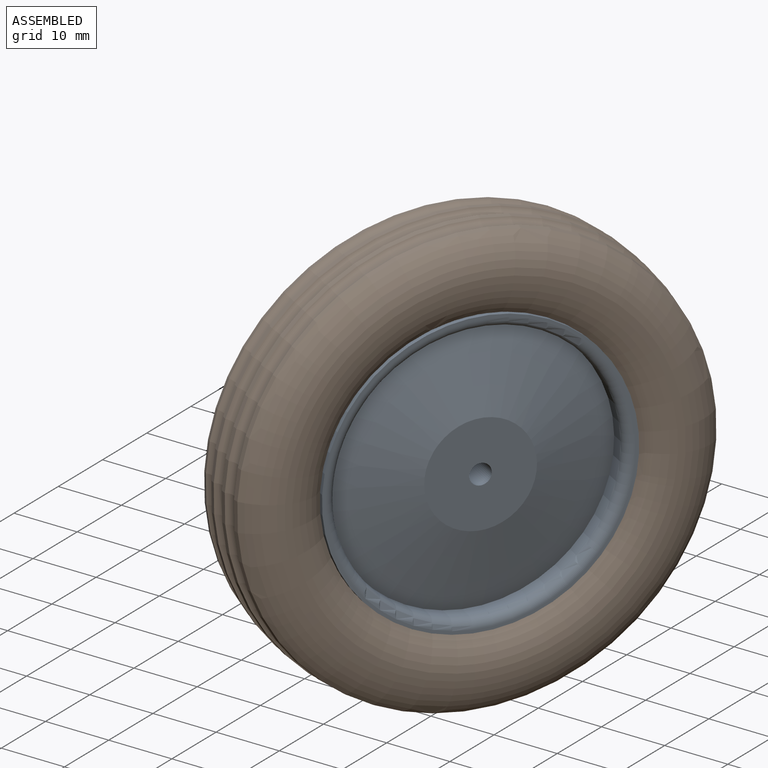
[diagram: assembled view]
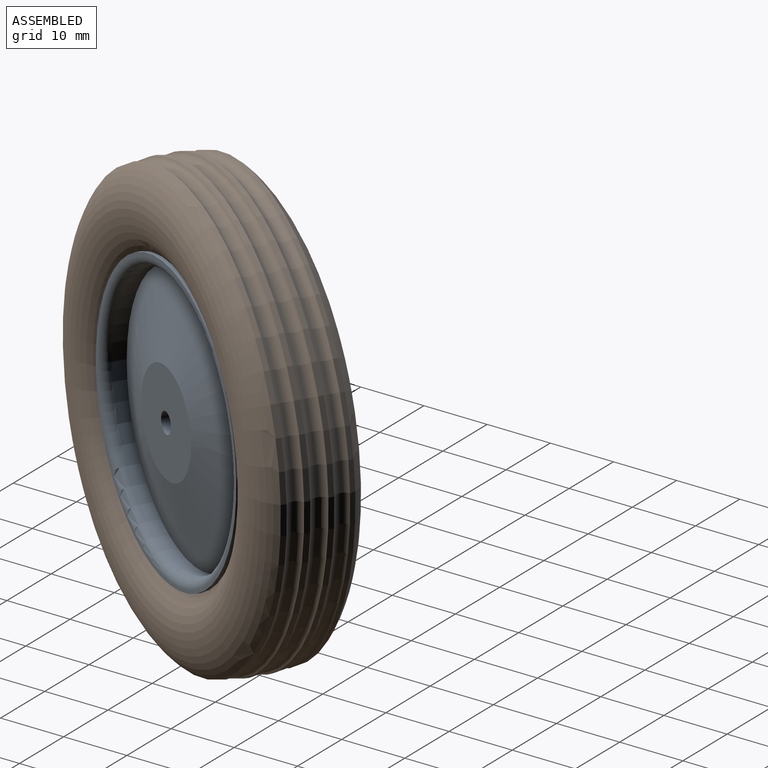
[diagram: assembled view, second angle]
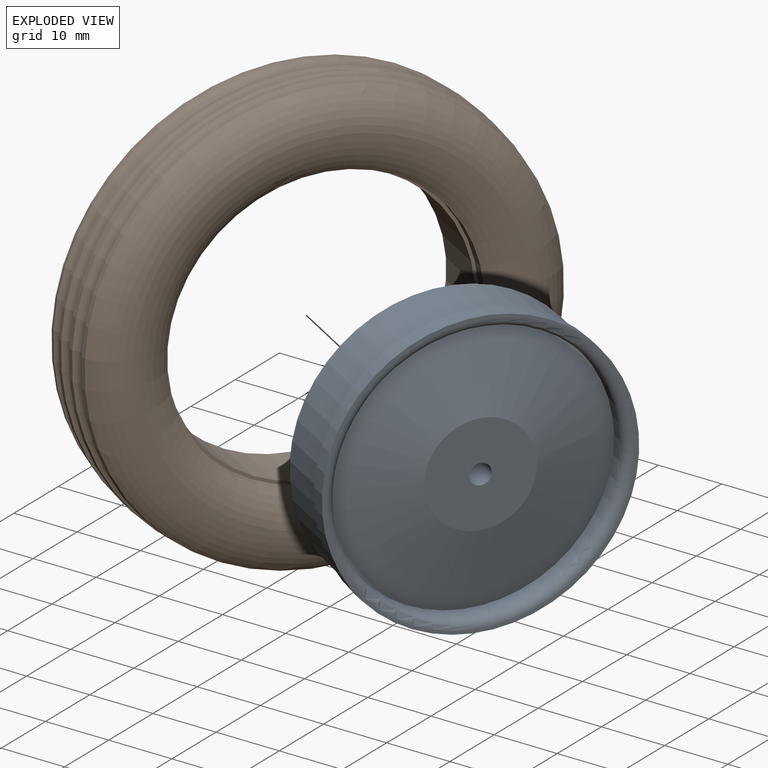
[diagram: exploded view]
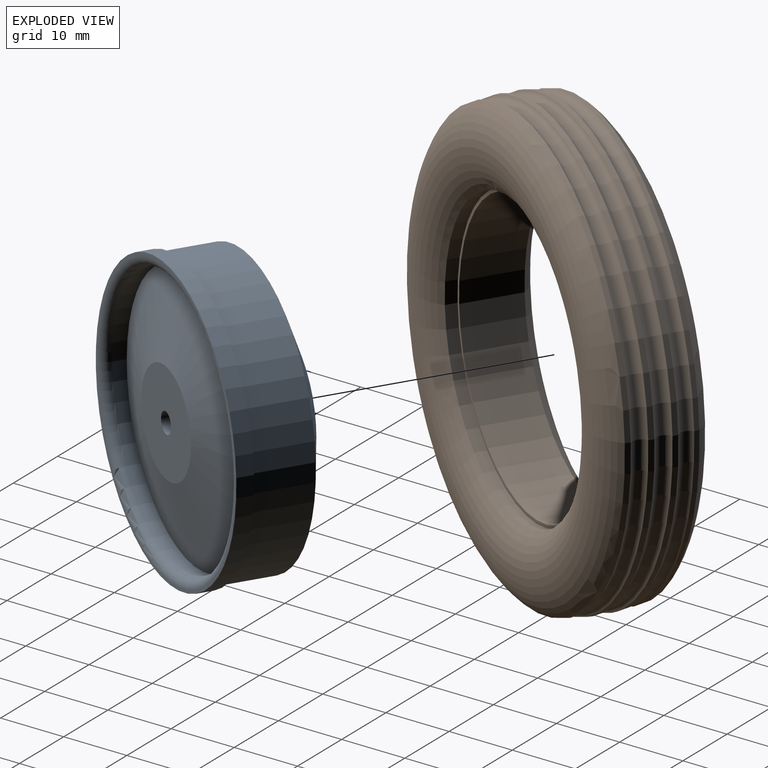
[diagram: exploded view, second angle]
ASSEMBLY  parts=2 mates=2
PART A: 11 faces, bbox 16x47.6x47.6 mm
  f0: plane 45x45mm, normal (1,0,0), area 69.9mm2, adj f2,f9
  f1: plane 16x16mm, normal (1,0,0), area 193mm2, adj f6,f8
  f2: cylinder r=22.5mm len=45mm, axis (1,0,0), area 353.4mm2, adj f0,f3
  f3: plane 45x45mm, normal (-1,0,0), area 69.9mm2, adj f2,f4
  f4: cylinder r=22mm len=44mm, axis (1,0,0), area 1244.1mm2, adj f3,f10
  f5: plane 24x24mm, normal (-1,0,0), area 444.3mm2, adj f6,f10
  f6: cylinder r=1.6mm len=16mm, axis (1,0,0), area 160.8mm2, adj f1,f5
  f7: cylinder r=20.5mm len=41mm, axis (1,0,0), area 257.6mm2, adj f8,f9
  f8: cone r=20.5mm half-angle=74.4deg, axis (-1,0,0), area 1162.2mm2, adj f1,f7
  f9: torus R=22mm, axis (1,0,0), area 311.6mm2, adj f0,f7
  f10: cone r=22mm half-angle=65.8deg, axis (1,0,0), area 1171.3mm2, adj f4,f5
PART B: 12 faces, bbox 16x77.9x77.9 mm
  f0: cylinder r=22mm len=44mm, axis (1,0,0), area 1284.4mm2, adj f1,f11
  f1: torus R=28mm, axis (-1,0,0), area 2387.2mm2, adj f0,f3
  f2: torus R=28mm, axis (-1,0,0), area 2286.5mm2, adj f4,f10
  f3: torus R=4.47mm, axis (-1,0,0), area 172.2mm2, adj f1,f6
  f4: torus R=4.47mm, axis (-1,0,0), area 172.2mm2, adj f2,f5
  f5: torus R=35mm, axis (1,0,0), area 602.6mm2, adj f4,f9
  f6: torus R=35mm, axis (1,0,0), area 602.6mm2, adj f3,f7
  f7: torus R=4.47mm, axis (-1,0,0), area 184.9mm2, adj f6,f8
  f8: torus R=35mm, axis (1,0,0), area 692.6mm2, adj f7,f9
  f9: torus R=4.47mm, axis (-1,0,0), area 184.9mm2, adj f5,f8
  f10: cylinder r=22.5mm len=45mm, axis (1,0,0), area 255.8mm2, adj f2,f11
  f11: plane 45x45mm, normal (1,0,0), area 69.9mm2, adj f0,f10
PLACE A rot(axis=(-0.11,0.01,-0.99),31.3deg) t=(-142.47,-4509.52,2870.92)mm
PLACE B rot(axis=(0.96,-0.27,-0.06),155deg) t=(-148.03,-4506.17,2870.87)mm
MATE planar B.f10 <-> A.f2  axis (0.86,-0.52,0.01) through (-144.61,-4508.23,2870.9)mm
MATE cylindrical A.f4 <-> B.f0  axis (0.86,-0.52,0.01) through (-148.46,-4505.91,2870.86)mm
